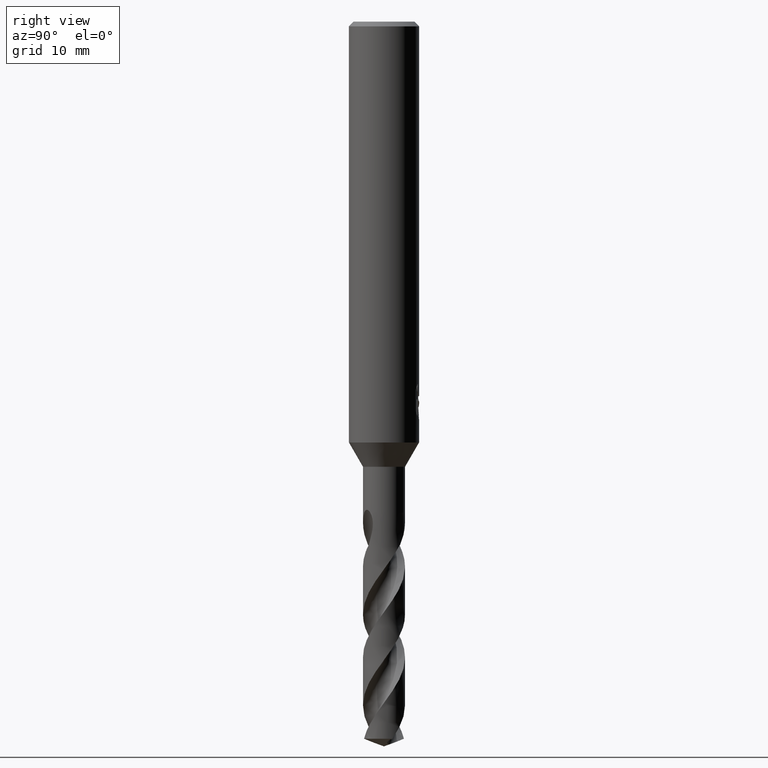
[diagram: clean part render]
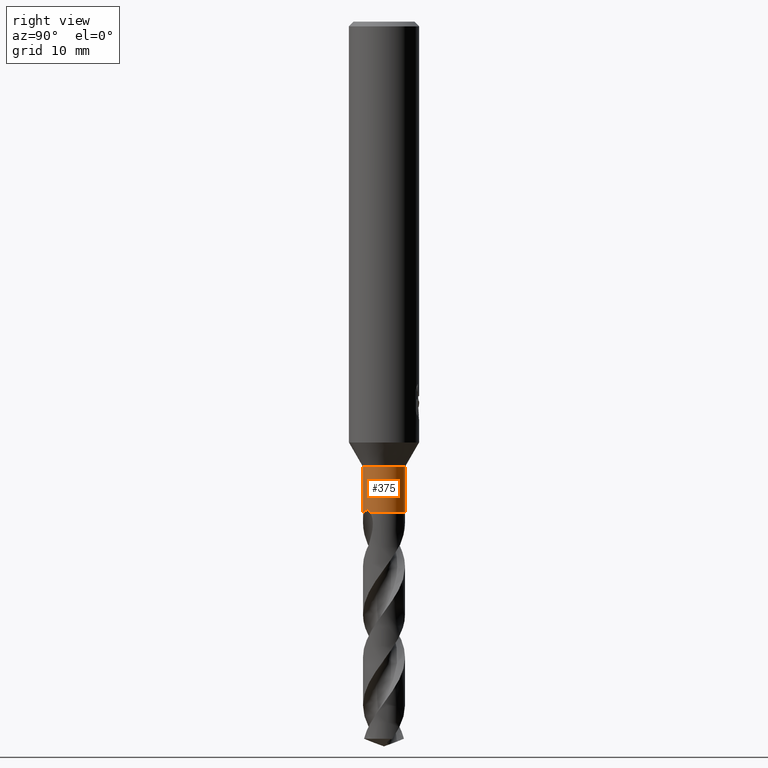
[diagram: same view with one face highlighted and labeled with its STEP entity id]
A machine part, right view. The second image highlights one B-rep face of the part: STEP entity #375.
In plain terms, the highlighted cylindrical surface (edge-blend (fillet) strip) has radius 1.8 mm, axis along (-0, -0, 1).
Its self-contained STEP definition (entity closure, byte-faithful):
#355=VERTEX_POINT('',#855);
#375=ADVANCED_FACE('',(#876),#877,.T.);
#399=VERTEX_POINT('',#904);
#411=VERTEX_POINT('',#917);
#497=EDGE_CURVE('',#629,#631,#1011,.T.);
#509=EDGE_CURVE('',#355,#673,#1024,.T.);
#527=EDGE_CURVE('',#399,#631,#1042,.T.);
#545=EDGE_CURVE('',#411,#673,#1062,.T.);
#557=EDGE_CURVE('',#411,#629,#1074,.T.);
#579=EDGE_CURVE('',#399,#355,#1098,.T.);
#629=VERTEX_POINT('',#1151);
#631=VERTEX_POINT('',#1153);
#673=VERTEX_POINT('',#1201);
#855=CARTESIAN_POINT('',(2.20429143688028E-016,-1.8,-42.0));
#876=FACE_OUTER_BOUND('',#2306,.T.);
#877=CYLINDRICAL_SURFACE('',#2307,1.8);
#904=CARTESIAN_POINT('',(0.616448164671868,-1.69115098683491,-42.0));
#917=CARTESIAN_POINT('',(0.0,1.8,-38.0784609690827));
#1011=CIRCLE('',#2757,1.8);
#1024=LINE('',#2800,#2801);
#1042=B_SPLINE_CURVE_WITH_KNOTS('',3,(#2910,#2911,#2912,#2913,#2914,#2915,#2916,#2917,#2918,#2919,#2920,#2921),.UNSPECIFIED.,.F.,.F.,(4,2,2,2,2,4),(0.0,0.33864270207496,0.544695434374113,0.714323512432186,0.883953178408909,1.06568958280745),.UNSPECIFIED.);
#1062=CIRCLE('',#3073,1.8);
#1074=LINE('',#3188,#3189);
#1098=CIRCLE('',#3341,1.8);
#1151=CARTESIAN_POINT('',(-2.20429143688028E-016,1.8,-42.0));
#1153=CARTESIAN_POINT('',(1.36232813690846,-1.1764616642235,-42.0));
#1201=CARTESIAN_POINT('',(2.20429143688028E-016,-1.8,-38.0784609690827));
#2306=EDGE_LOOP('',(#5287,#5288,#5289,#5290,#5291,#5292));
#2307=AXIS2_PLACEMENT_3D('',#5293,#5294,#5295);
#2757=AXIS2_PLACEMENT_3D('',#5469,#5470,#5471);
#2800=CARTESIAN_POINT('',(2.20429143688028E-016,-1.8,-40.0392304845413));
#2801=VECTOR('',#5485,1.0);
#2910=CARTESIAN_POINT('',(0.616448164671866,-1.69115098683491,-42.0));
#2911=CARTESIAN_POINT('',(0.694640453767473,-1.662648804901,-41.9237393332579));
#2912=CARTESIAN_POINT('',(0.782105737301142,-1.62450629096775,-41.8523993744265));
#2913=CARTESIAN_POINT('',(0.927696251525128,-1.54380856037308,-41.7804804790781));
#2914=CARTESIAN_POINT('',(0.984042190629799,-1.50875784459478,-41.7630854935848));
#2915=CARTESIAN_POINT('',(1.08594826290716,-1.43662601094608,-41.7592739018827));
#2916=CARTESIAN_POINT('',(1.12921301228494,-1.40274410581328,-41.7680418979518));
#2917=CARTESIAN_POINT('',(1.20984817770681,-1.33382176210852,-41.8063005702076));
#2918=CARTESIAN_POINT('',(1.24531700749887,-1.30043961605125,-41.83487825616));
#2919=CARTESIAN_POINT('',(1.30993229002593,-1.23544504212019,-41.907386705847));
#2920=CARTESIAN_POINT('',(1.33823780476781,-1.20435797253572,-41.9520094750689));
#2921=CARTESIAN_POINT('',(1.36232813690846,-1.1764616642235,-42.0));
#3073=AXIS2_PLACEMENT_3D('',#5519,#5520,#5521);
#3188=CARTESIAN_POINT('',(-2.20429143688028E-016,1.8,-40.0392304845413));
#3189=VECTOR('',#5522,1.0);
#3341=AXIS2_PLACEMENT_3D('',#5542,#5543,#5544);
#5287=ORIENTED_EDGE('',*,*,#557,.F.);
#5288=ORIENTED_EDGE('',*,*,#545,.T.);
#5289=ORIENTED_EDGE('',*,*,#509,.F.);
#5290=ORIENTED_EDGE('',*,*,#579,.F.);
#5291=ORIENTED_EDGE('',*,*,#527,.T.);
#5292=ORIENTED_EDGE('',*,*,#497,.F.);
#5293=CARTESIAN_POINT('',(0.0,0.0,-40.0392304845413));
#5294=DIRECTION('',(-0.0,-0.0,1.0));
#5295=DIRECTION('',(0.0,1.0,0.0));
#5469=CARTESIAN_POINT('',(0.0,0.0,-42.0));
#5470=DIRECTION('',(0.0,0.0,-1.0));
#5471=DIRECTION('',(0.0,1.0,0.0));
#5485=DIRECTION('',(-0.0,-0.0,1.0));
#5519=CARTESIAN_POINT('',(0.0,0.0,-38.0784609690827));
#5520=DIRECTION('',(0.0,0.0,-1.0));
#5521=DIRECTION('',(0.0,1.0,0.0));
#5522=DIRECTION('',(0.0,0.0,-1.0));
#5542=CARTESIAN_POINT('',(0.0,0.0,-42.0));
#5543=DIRECTION('',(0.0,0.0,-1.0));
#5544=DIRECTION('',(0.0,1.0,0.0));